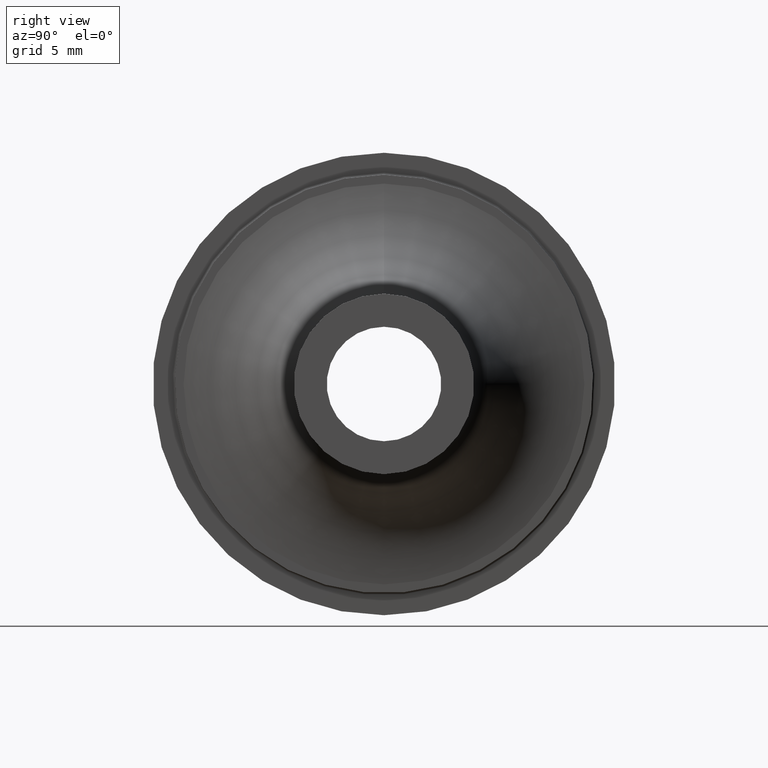
[diagram: clean part render]
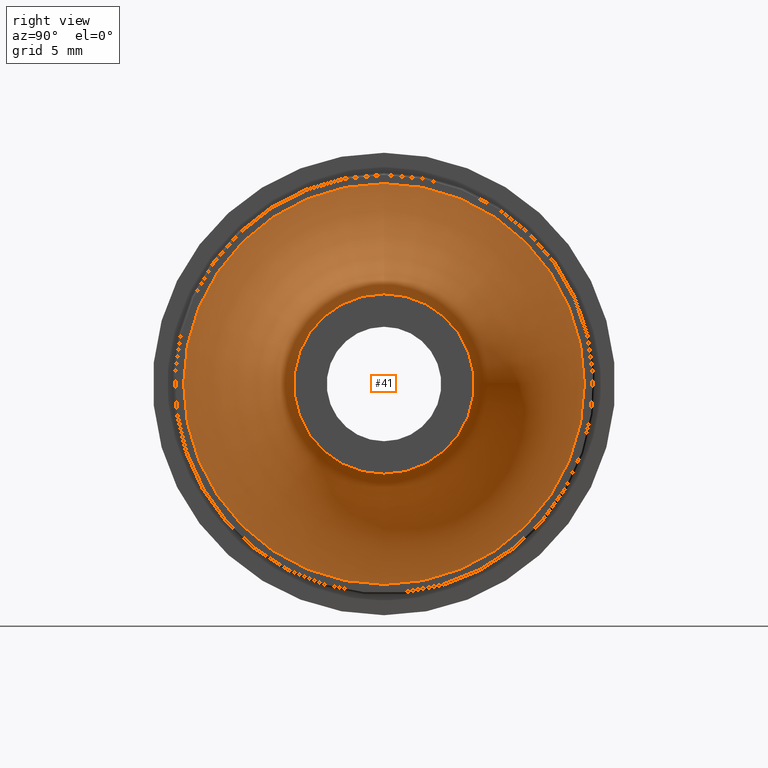
[diagram: same view with one face highlighted and labeled with its STEP entity id]
A machine part, right view. The second image highlights one B-rep face of the part: STEP entity #41.
In plain terms, the highlighted toroidal blend (fillet) surface has major radius 9.1 mm and minor (blend) radius 5 mm.
Its self-contained STEP definition (entity closure, byte-faithful):
#41 = ADVANCED_FACE( '', ( #88, #89 ), #90, .F. );
#88 = FACE_OUTER_BOUND( '', #147, .T. );
#89 = FACE_OUTER_BOUND( '', #148, .T. );
#90 = TOROIDAL_SURFACE( '', #149, 9.10000000000000, 5.00000000000000 );
#147 = EDGE_LOOP( '', ( #204 ) );
#148 = EDGE_LOOP( '', ( #205 ) );
#149 = AXIS2_PLACEMENT_3D( '', #206, #207, #208 );
#204 = ORIENTED_EDGE( '', *, *, #271, .F. );
#205 = ORIENTED_EDGE( '', *, *, #276, .T. );
#206 = CARTESIAN_POINT( '', ( 9.00000000000000, 0.000000000000000, 0.000000000000000 ) );
#207 = DIRECTION( '', ( -1.00000000000000, 0.000000000000000, 0.000000000000000 ) );
#208 = DIRECTION( '', ( 0.000000000000000, 0.000000000000000, 1.00000000000000 ) );
#271 = EDGE_CURVE( '', #298, #298, #299, .T. );
#276 = EDGE_CURVE( '', #306, #306, #307, .T. );
#298 = VERTEX_POINT( '', #337 );
#299 = CIRCLE( '', #338, 9.10000000000000 );
#306 = VERTEX_POINT( '', #345 );
#307 = CIRCLE( '', #346, 4.10000000000000 );
#337 = CARTESIAN_POINT( '', ( 4.00000000000000, 0.000000000000000, 9.10000000000000 ) );
#338 = AXIS2_PLACEMENT_3D( '', #376, #377, #378 );
#345 = CARTESIAN_POINT( '', ( 9.00000000000000, 0.000000000000000, 4.10000000000000 ) );
#346 = AXIS2_PLACEMENT_3D( '', #385, #386, #387 );
#376 = CARTESIAN_POINT( '', ( 4.00000000000000, 0.000000000000000, 0.000000000000000 ) );
#377 = DIRECTION( '', ( -1.00000000000000, 0.000000000000000, 0.000000000000000 ) );
#378 = DIRECTION( '', ( 0.000000000000000, 0.000000000000000, 1.00000000000000 ) );
#385 = CARTESIAN_POINT( '', ( 9.00000000000000, 0.000000000000000, 0.000000000000000 ) );
#386 = DIRECTION( '', ( -1.00000000000000, 0.000000000000000, 0.000000000000000 ) );
#387 = DIRECTION( '', ( 0.000000000000000, 0.000000000000000, 1.00000000000000 ) );